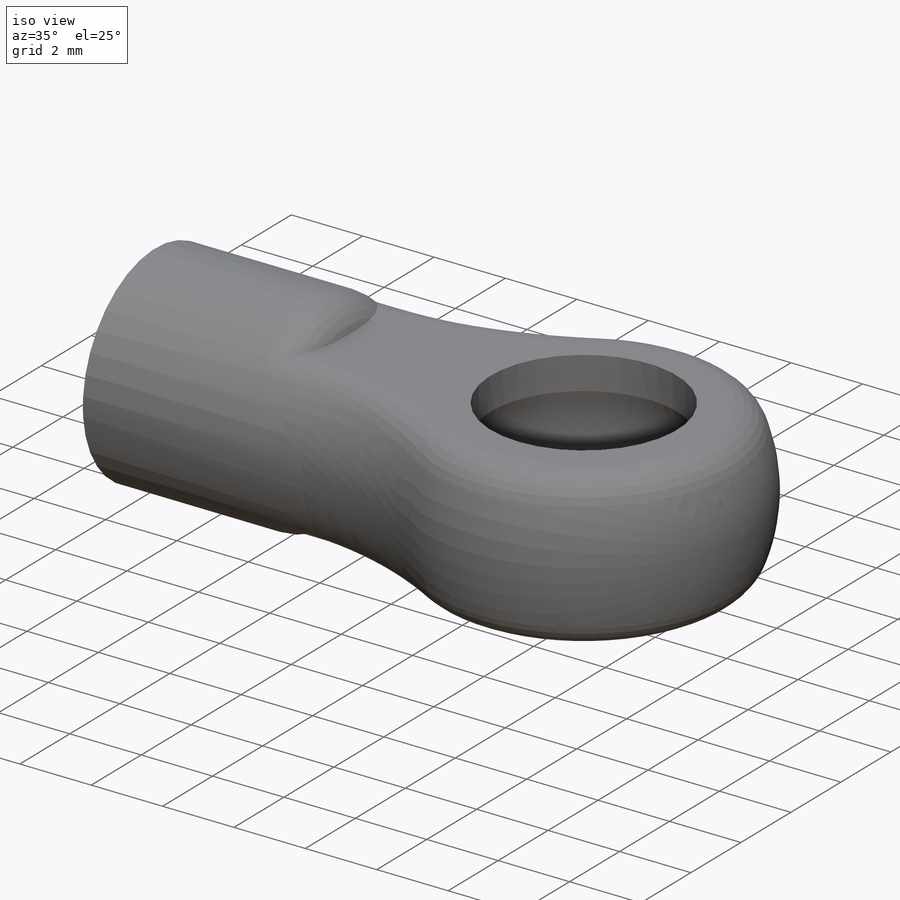
[diagram: iso view]
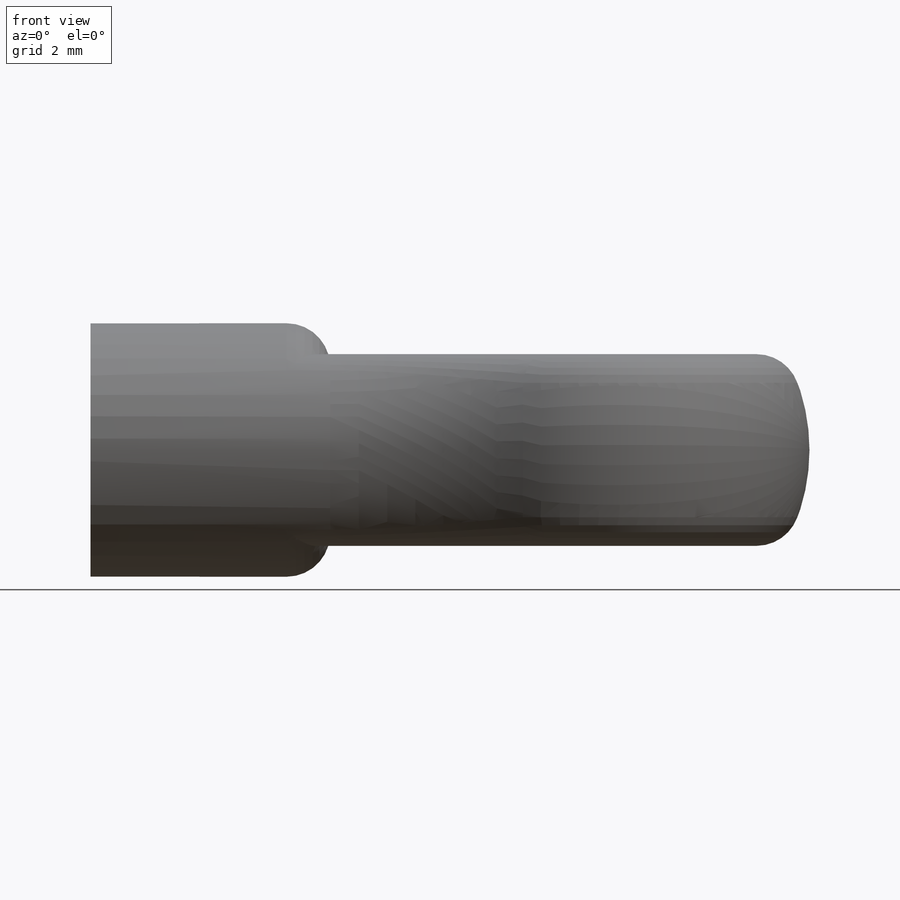
[diagram: front view]
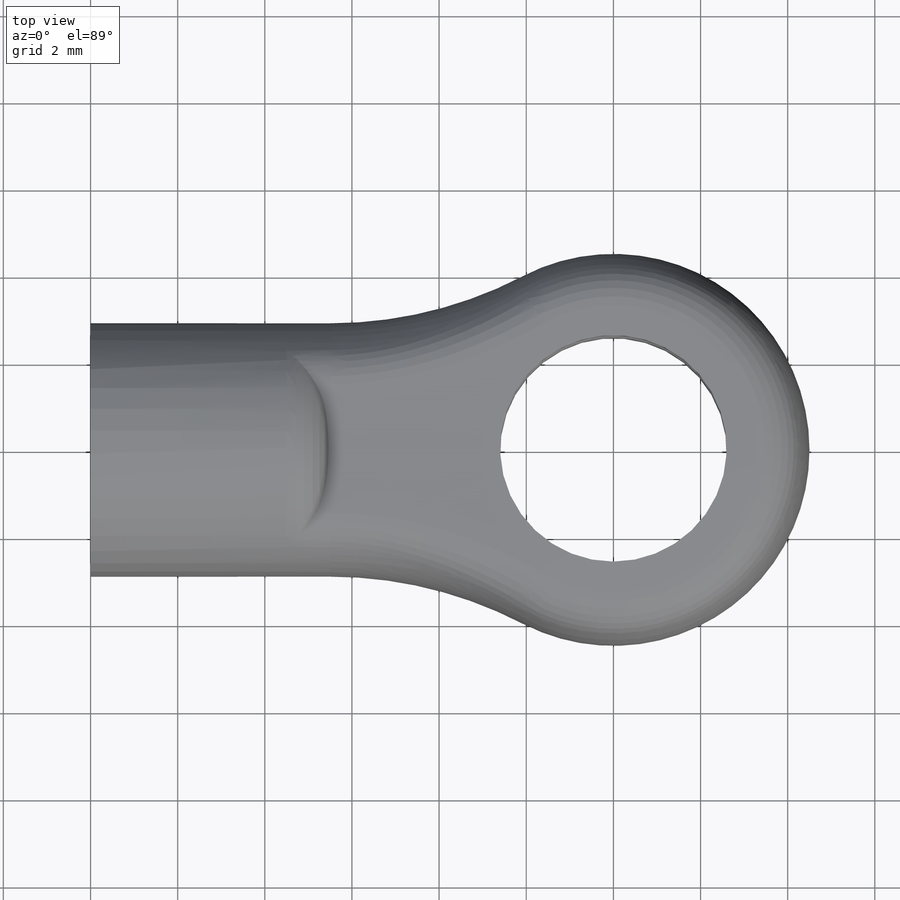
[diagram: top view]
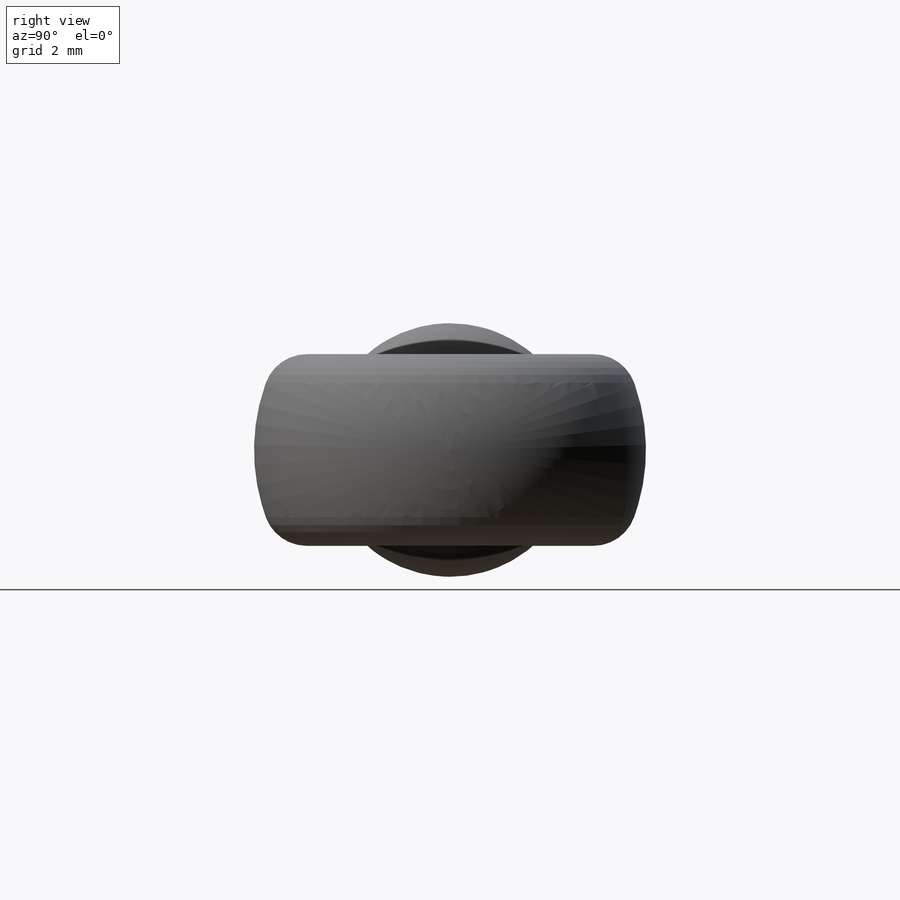
[diagram: right view]
SOLIDWORKS PART (.sldprt)
format: sldprt  version: not decoded by parser v0  size: 386,560 bytes
history: native  units: mm
features: sketch x7, plane x3, cut_extrude x2, thread x2, material x1, revolve x1, extrude x1, fillet x1, hole x1, cut_revolve x1 (+10 scaffold rows collapsed)
feature tree (30):
  scaffold x10  (default folders/planes/origin — collapsed)
  material  "材质 <未指定>"
  plane  "前视基准面"
  plane  "上视基准面"
  plane  "右视基准面"
  sketch  "草图1"  dims[D1=9.0mm D2=6.0mm D3=11.0mm D4=6.4mm]
  revolve  "旋转1"  Angle=360deg
  sketch  "草图3"  dims[D1=2.2mm D2=2.2mm]
  cut_extrude  "切除-拉伸1"  [1 undecoded]
  sketch  "草图4"
  extrude  "凸台-拉伸3"  Depth=5.5mm
  fillet  "圆角3"  Radius=1mm
  hole  "M3 螺纹孔1"  [1 undecoded]
  sketch  "3D草图1"
  sketch  "草图5"  dims[hole-wizard template sketch: 50 standard entries collapsed; hole parameters above]
  thread  "孔螺蚊线1"  Diameter=4mm  [1 undecoded]
  thread  "圆角4"  Diameter=1mm  [1 undecoded]
  sketch  "草图6"  dims[D1=5.2mm]
  cut_extrude  "切除-拉伸2"  [1 undecoded]
  sketch  "草图7"  dims[c1.D1=5.8mm c1.D4=2.9mm c1.D2=1.0mm c1.D3=2.6mm c2.D4=~1.905405mm]
  cut_revolve  "切除-旋转1"  Angle=360deg
decode coverage: 11 of 16 modeling features carry decoded parameters
note: ~ marks probable driven/reference dimensions
note: 5 parameter values undecoded
summary: no parameter record found for 3 features
note: suppression state not decoded; provenance and decode notes live in map.json
